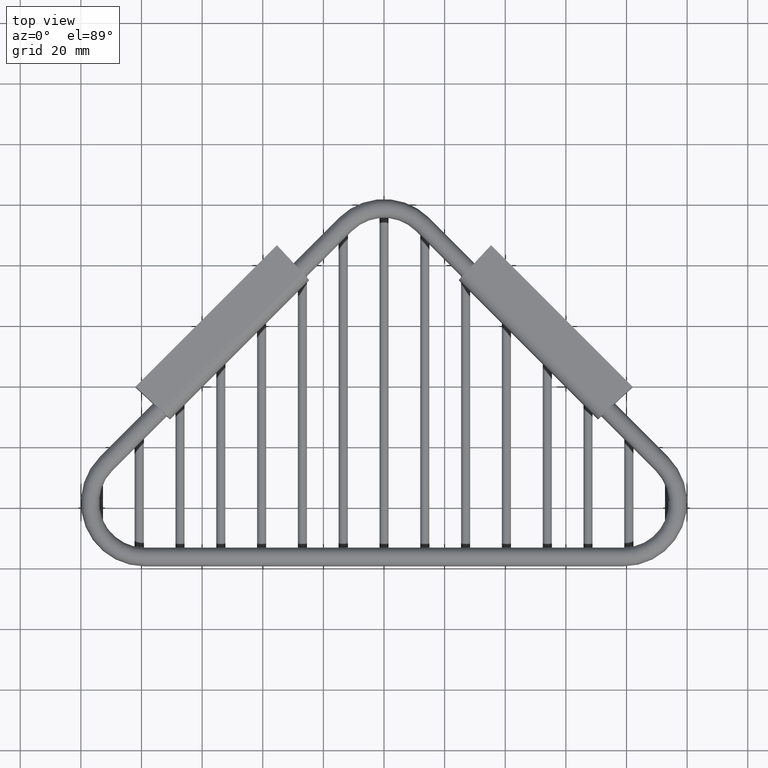
[diagram: clean part render]
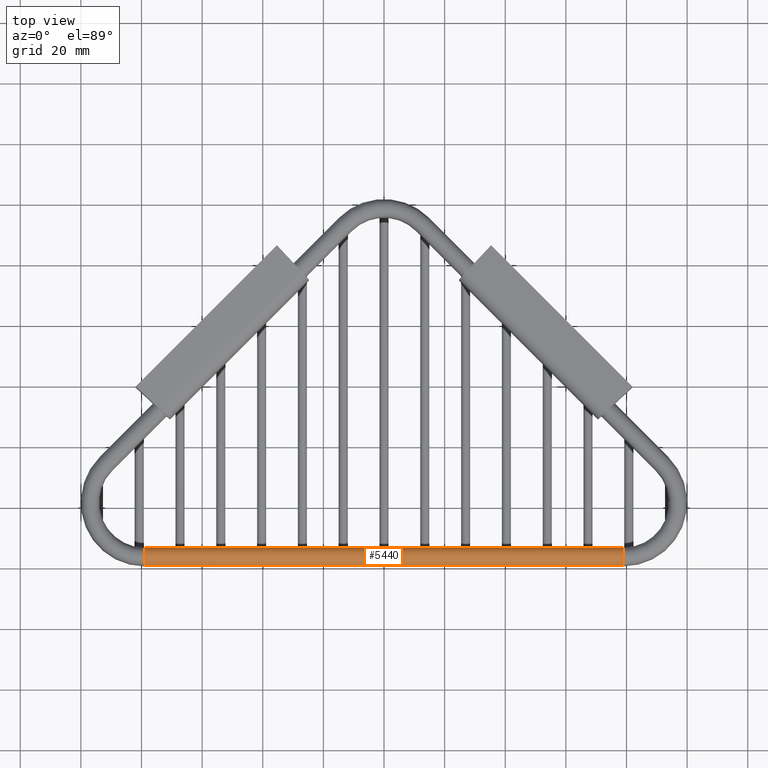
[diagram: same view with one face highlighted and labeled with its STEP entity id]
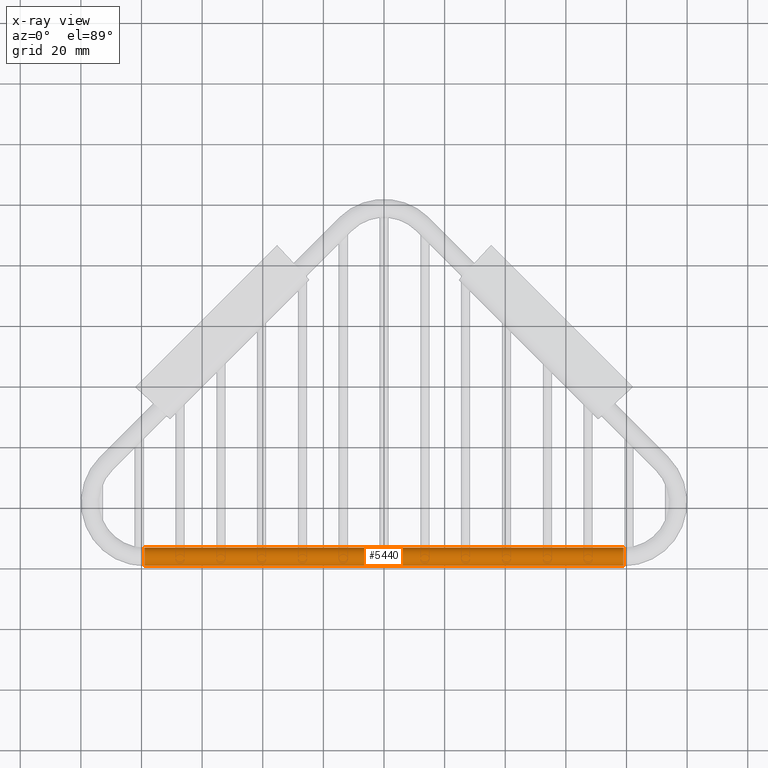
[diagram: x-ray of the same camera — body ghosted, the highlighted face saturated]
A machine part, top view. The second image highlights one B-rep face of the part: STEP entity #5440.
The next image is the same camera in x-ray: the body ghosted, the highlighted face saturated — about 0% of this face is hidden behind the body in this view.
In plain terms, the highlighted cylindrical surface (edge-blend (fillet) strip) has radius 2.9972 mm, axis along (1, 0, 0).
Its self-contained STEP definition (entity closure, byte-faithful):
#1941=CARTESIAN_POINT('',(3.110000107638E0,1.179999999064E-1,1.38E-1));
#1942=DIRECTION('',(-1.E0,-1.518160444788E-7,0.E0));
#1943=DIRECTION('',(1.518160437288E-7,-1.E0,0.E0));
#1944=AXIS2_PLACEMENT_3D('',#1941,#1942,#1943);
#1949=CARTESIAN_POINT('',(-3.11E0,1.18E-1,1.38E-1));
#1950=DIRECTION('',(-1.E0,0.E0,0.E0));
#1951=DIRECTION('',(0.E0,-1.E0,0.E0));
#1952=AXIS2_PLACEMENT_3D('',#1949,#1950,#1951);
#1957=DIRECTION('',(1.E0,0.E0,0.E0));
#1958=VECTOR('',#1957,6.219999999955E0);
#1959=CARTESIAN_POINT('',(-3.109999999979E0,-2.340910798537E-11,1.38E-1));
#1960=LINE('',#1959,#1958);
#2177=DIRECTION('',(1.E0,0.E0,0.E0));
#2178=VECTOR('',#2177,6.219999999935E0);
#2179=CARTESIAN_POINT('',(-3.109999999969E0,2.359999999766E-1,1.38E-1));
#2180=LINE('',#2179,#2178);
#3565=CARTESIAN_POINT('',(-3.11E0,0.E0,1.38E-1));
#3566=VERTEX_POINT('',#3565);
#3567=CARTESIAN_POINT('',(-3.11E0,2.36E-1,1.38E-1));
#3568=VERTEX_POINT('',#3567);
#3569=CARTESIAN_POINT('',(3.109999999977E0,-2.340910798537E-11,1.38E-1));
#3570=VERTEX_POINT('',#3569);
#3571=CARTESIAN_POINT('',(3.109999999966E0,2.359999999766E-1,1.38E-1));
#3572=VERTEX_POINT('',#3571);
#5426=CARTESIAN_POINT('',(-3.123632085218E0,1.18E-1,1.38E-1));
#5427=DIRECTION('',(1.E0,0.E0,0.E0));
#5428=DIRECTION('',(0.E0,-1.E0,0.E0));
#5429=AXIS2_PLACEMENT_3D('',#5426,#5427,#5428);
#5430=CYLINDRICAL_SURFACE('',#5429,1.18E-1);
#5432=ORIENTED_EDGE('',*,*,#5431,.F.);
#5434=ORIENTED_EDGE('',*,*,#5433,.T.);
#5436=ORIENTED_EDGE('',*,*,#5435,.T.);
#5437=ORIENTED_EDGE('',*,*,#5417,.F.);
#5438=EDGE_LOOP('',(#5432,#5434,#5436,#5437));
#5439=FACE_OUTER_BOUND('',#5438,.F.);
#1945=CIRCLE('',#1944,1.18E-1);
#1953=CIRCLE('',#1952,1.18E-1);
#5417=EDGE_CURVE('',#3570,#3572,#1945,.T.);
#5431=EDGE_CURVE('',#3566,#3570,#1960,.T.);
#5433=EDGE_CURVE('',#3566,#3568,#1953,.T.);
#5435=EDGE_CURVE('',#3568,#3572,#2180,.T.);
#5440=ADVANCED_FACE('',(#5439),#5430,.T.);